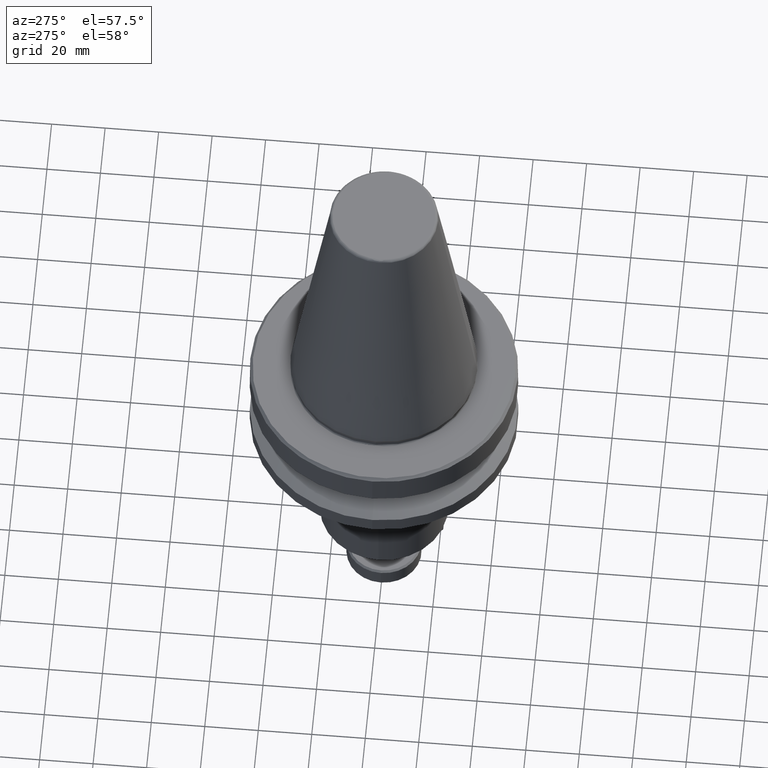
[diagram: clean part render]
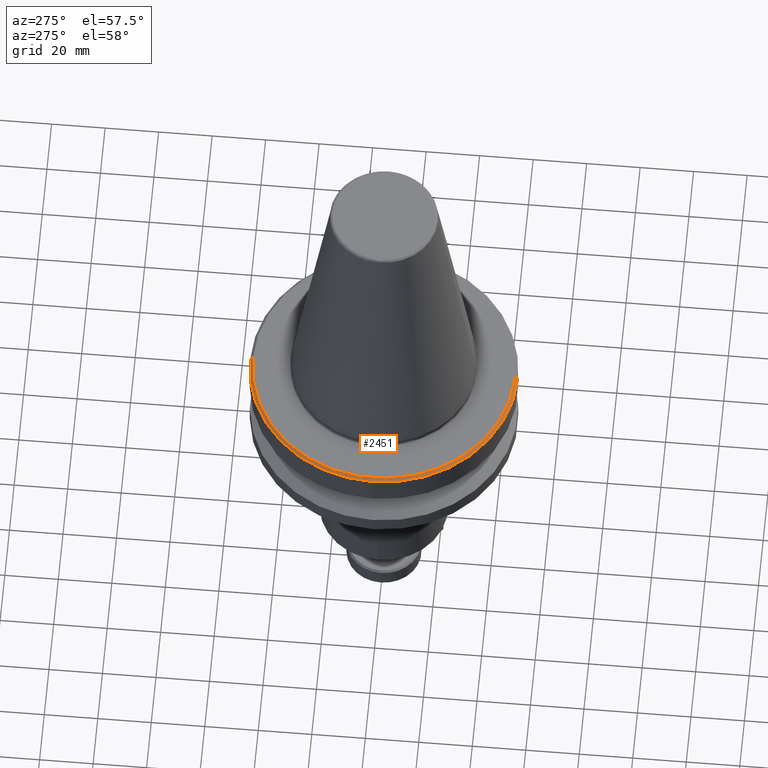
[diagram: same view with one face highlighted and labeled with its STEP entity id]
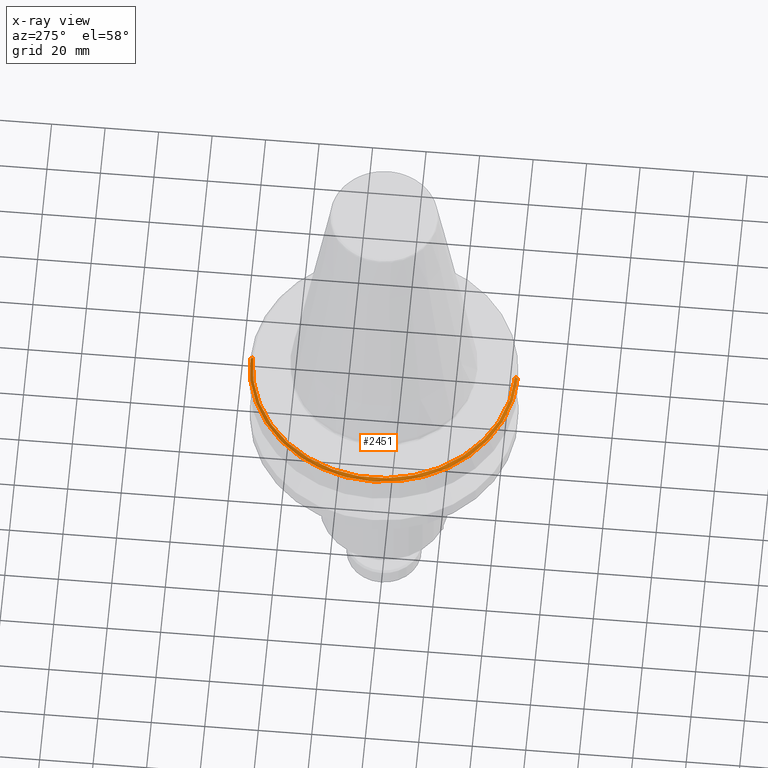
[diagram: x-ray of the same camera — body ghosted, the highlighted face saturated]
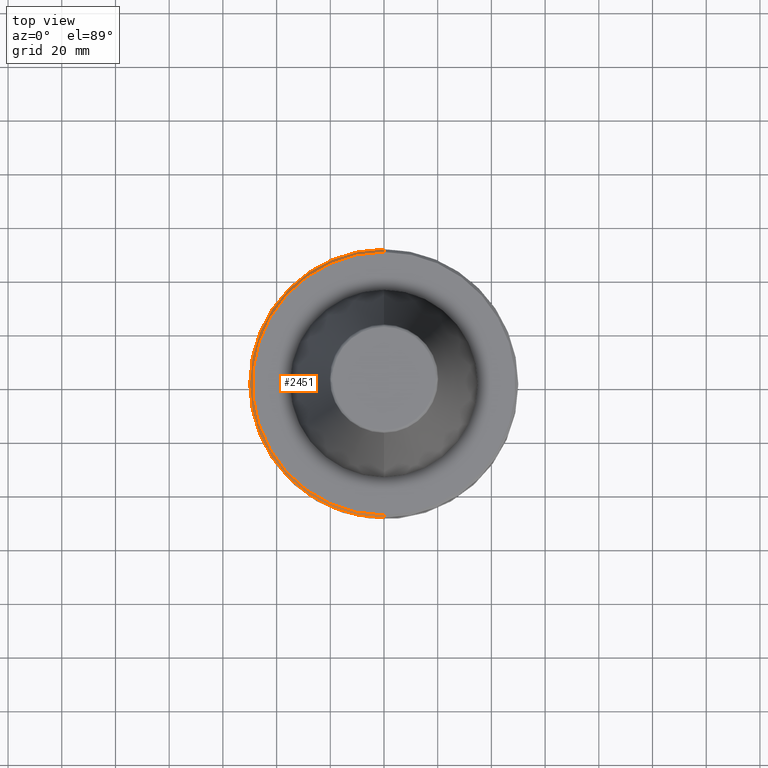
[diagram: same view with one face highlighted and labeled with its STEP entity id]
A machine part, auxiliary view. The second image highlights one B-rep face of the part: STEP entity #2451.
The next image is the same camera in x-ray: the body ghosted, the highlighted face saturated — about 0% of this face is hidden behind the body in this view.
A second angle (top view) of the same face is appended — the face is thin or edge-on in the first view.
In plain terms, the highlighted conical surface has half-angle 45 deg.
Its self-contained STEP definition (entity closure, byte-faithful):
#197 = CARTESIAN_POINT ( 'NONE',  ( 0.0000000000000000000, 50.00000000000000000, -3.999999999999989800 ) ) ;
#199 = CARTESIAN_POINT ( 'NONE',  ( 6.123233995736766100E-015, -50.00000000000000000, -3.999999999999989800 ) ) ;
#268 = DIRECTION ( 'NONE',  ( 0.0000000000000000000, 0.7071067811865479100, -0.7071067811865472400 ) ) ;
#270 = CARTESIAN_POINT ( 'NONE',  ( 0.0000000000000000000, 50.00000000000000700, -3.999999999999994700 ) ) ;
#386 = AXIS2_PLACEMENT_3D ( 'NONE', #832, #845, #839 ) ;
#469 = CIRCLE ( 'NONE', #1932, 50.00000000000000000 ) ;
#511 = DIRECTION ( 'NONE',  ( 8.659560562354937800E-017, -0.7071067811865479100, -0.7071067811865472400 ) ) ;
#521 = CARTESIAN_POINT ( 'NONE',  ( 6.123233995736766900E-015, -50.00000000000000700, -3.999999999999996400 ) ) ;
#526 = EDGE_LOOP ( 'NONE', ( #710, #653, #1948, #2541, #1571 ) ) ;
#540 = VERTEX_POINT ( 'NONE', #1675 ) ;
#653 = ORIENTED_EDGE ( 'NONE', *, *, #1449, .T. ) ;
#710 = ORIENTED_EDGE ( 'NONE', *, *, #2551, .F. ) ;
#739 = CIRCLE ( 'NONE', #2042, 50.00000000000000000 ) ;
#832 = CARTESIAN_POINT ( 'NONE',  ( 0.0000000000000000000, 0.0000000000000000000, -3.999999999999995600 ) ) ;
#839 = DIRECTION ( 'NONE',  ( 0.0000000000000000000, 1.000000000000000000, 1.734723475976806800E-017 ) ) ;
#845 = DIRECTION ( 'NONE',  ( 0.0000000000000000000, 8.673617379884035500E-018, -1.000000000000000000 ) ) ;
#894 = DIRECTION ( 'NONE',  ( 0.0000000000000000000, 1.000000000000000000, 8.850629979473505400E-018 ) ) ;
#896 = DIRECTION ( 'NONE',  ( 0.0000000000000000000, 8.673617379884035500E-018, -1.000000000000000000 ) ) ;
#899 = CARTESIAN_POINT ( 'NONE',  ( 0.0000000000000000000, -8.673617379884097100E-018, -2.999999999999988900 ) ) ;
#999 = VERTEX_POINT ( 'NONE', #1425 ) ;
#1079 = EDGE_CURVE ( 'NONE', #1694, #540, #469, .T. ) ;
#1341 = DIRECTION ( 'NONE',  ( -1.000000000000000000, -8.881784197001252300E-016, -3.469446951953614200E-017 ) ) ;
#1346 = DIRECTION ( 'NONE',  ( -0.0000000000000000000, -0.0000000000000000000, 1.000000000000000000 ) ) ;
#1349 = CARTESIAN_POINT ( 'NONE',  ( 0.0000000000000000000, 0.0000000000000000000, -3.999999999999989800 ) ) ;
#1386 = VECTOR ( 'NONE', #511, 999.9999999999998900 ) ;
#1425 = CARTESIAN_POINT ( 'NONE',  ( 0.0000000000000000000, 49.00000000000000000, -2.999999999999988500 ) ) ;
#1449 = EDGE_CURVE ( 'NONE', #1977, #999, #2435, .T. ) ;
#1571 = ORIENTED_EDGE ( 'NONE', *, *, #1949, .T. ) ;
#1590 = EDGE_CURVE ( 'NONE', #999, #1694, #1763, .T. ) ;
#1635 = AXIS2_PLACEMENT_3D ( 'NONE', #899, #896, #894 ) ;
#1647 = FACE_OUTER_BOUND ( 'NONE', #526, .T. ) ;
#1664 = VERTEX_POINT ( 'NONE', #199 ) ;
#1675 = CARTESIAN_POINT ( 'NONE',  ( -50.00000000000000000, 6.123233995736766100E-015, -3.999999999999989800 ) ) ;
#1694 = VERTEX_POINT ( 'NONE', #197 ) ;
#1763 = LINE ( 'NONE', #270, #2725 ) ;
#1909 = LINE ( 'NONE', #521, #1386 ) ;
#1932 = AXIS2_PLACEMENT_3D ( 'NONE', #1349, #1346, #1341 ) ;
#1948 = ORIENTED_EDGE ( 'NONE', *, *, #1590, .T. ) ;
#1949 = EDGE_CURVE ( 'NONE', #540, #1664, #739, .T. ) ;
#1977 = VERTEX_POINT ( 'NONE', #2123 ) ;
#2042 = AXIS2_PLACEMENT_3D ( 'NONE', #2158, #2156, #2148 ) ;
#2083 = CONICAL_SURFACE ( 'NONE', #386, 50.00000000000000700, 0.7853981633974487200 ) ;
#2123 = CARTESIAN_POINT ( 'NONE',  ( 6.062001655779398500E-015, -49.00000000000000000, -2.999999999999989300 ) ) ;
#2148 = DIRECTION ( 'NONE',  ( -1.000000000000000000, 0.0000000000000000000, -3.469446951953614200E-017 ) ) ;
#2156 = DIRECTION ( 'NONE',  ( -0.0000000000000000000, -0.0000000000000000000, 1.000000000000000000 ) ) ;
#2158 = CARTESIAN_POINT ( 'NONE',  ( 0.0000000000000000000, 0.0000000000000000000, -3.999999999999989800 ) ) ;
#2435 = CIRCLE ( 'NONE', #1635, 49.00000000000000000 ) ;
#2451 = ADVANCED_FACE ( 'NONE', ( #1647 ), #2083, .T. ) ;
#2541 = ORIENTED_EDGE ( 'NONE', *, *, #1079, .T. ) ;
#2551 = EDGE_CURVE ( 'NONE', #1977, #1664, #1909, .T. ) ;
#2725 = VECTOR ( 'NONE', #268, 999.9999999999998900 ) ;